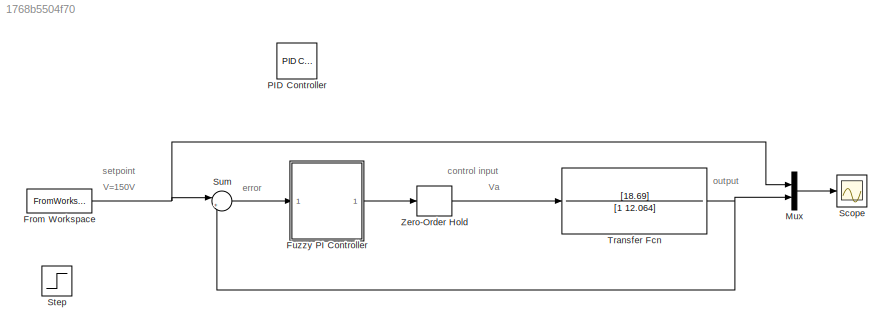
MODEL slx_1768b5504f70
KIND model
CONFIG AbsTol = auto
CONFIG EnableMultiTasking = off
CONFIG FixedStep = auto
CONFIG MaxStep = auto
CONFIG MinStep = auto
CONFIG RelTol = 1e-3
CONFIG SampleTimeConstraint = Unconstrained
CONFIG Solver = VariableStepAuto
CONFIG SolverName = VariableStepAuto
CONFIG StartTime = 0.0
CONFIG StopTime = 30
BLOCK [FromWorkspace] From Workspace
  SampleTime = 0.01
  VariableName = case_2
  ZeroCross = on
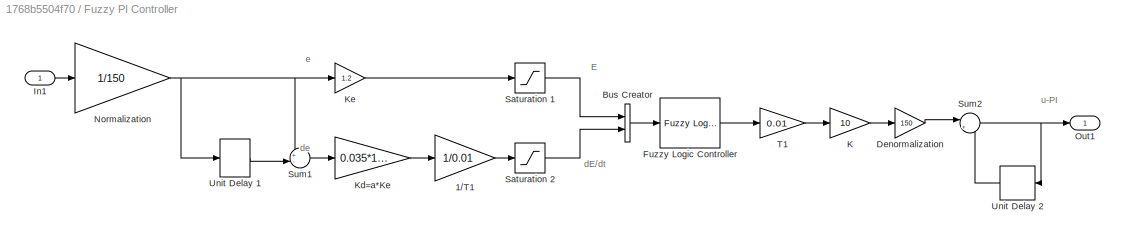
BLOCK [SubSystem] Fuzzy PI Controller
  Ports = [1, 1]
  RequestExecContextInheritance = off
BLOCK [Gain] Fuzzy PI Controller/1//T1
  Gain = 1/0.01
  OutDataTypeStr = Inherit: Inherit via internal rule
  ParamDataTypeStr = Inherit: Inherit via internal rule
  SaturateOnIntegerOverflow = off
BLOCK [BusCreator] Fuzzy PI Controller/Bus Creator
  DisplayOption = bar
  InheritFromInputs = on
  Inputs = 2
  Ports = [2, 1]
BLOCK [Gain] Fuzzy PI Controller/Denormalization 
  Gain = 150
  OutDataTypeStr = Inherit: Inherit via internal rule
  ParamDataTypeStr = Inherit: Inherit via internal rule
  SaturateOnIntegerOverflow = off
BLOCK [Reference] Fuzzy PI Controller/Fuzzy Logic Controller   REF=fuzblock/Fuzzy Logic   (lib defined in mdl_858b3b3e7478)
Controller 
with Ruleviewer
  Ports = [1, 1]
  SourceBlock = fuzblock/Fuzzy Logic \nController \nwith Ruleviewer
  SourceProductBaseCode = FL
  SourceProductName = Fuzzy Logic Toolbox
  SourceType = Fuzzy Inference System
BLOCK [Inport] Fuzzy PI Controller/In1
  IconDisplay = Port number
BLOCK [Gain] Fuzzy PI Controller/K
  Gain = 10
  OutDataTypeStr = Inherit: Inherit via internal rule
  ParamDataTypeStr = Inherit: Inherit via internal rule
  SaturateOnIntegerOverflow = off
BLOCK [Gain] Fuzzy PI Controller/Kd=a*Ke
  Gain = 0.035*1.2
  OutDataTypeStr = Inherit: Inherit via internal rule
  ParamDataTypeStr = Inherit: Inherit via internal rule
  SaturateOnIntegerOverflow = off
BLOCK [Gain] Fuzzy PI Controller/Ke
  Gain = 1.2
  OutDataTypeStr = Inherit: Inherit via internal rule
  ParamDataTypeStr = Inherit: Inherit via internal rule
  SaturateOnIntegerOverflow = off
BLOCK [Gain] Fuzzy PI Controller/Normalization
  Gain = 1/150
  OutDataTypeStr = Inherit: Inherit via internal rule
  ParamDataTypeStr = Inherit: Inherit via internal rule
  SaturateOnIntegerOverflow = off
BLOCK [Outport] Fuzzy PI Controller/Out1
  IconDisplay = Port number
BLOCK [Saturate] Fuzzy PI Controller/Saturation 1 
  InputPortMap = u0
  LowerLimit = -1
  Ports = [1, 1]
  UpperLimit = 1
BLOCK [Saturate] Fuzzy PI Controller/Saturation 2 
  InputPortMap = u0
  LowerLimit = -1
  Ports = [1, 1]
  UpperLimit = 1
BLOCK [Sum] Fuzzy PI Controller/Sum1
  IconShape = round
  InputSameDT = off
  Inputs = +-|
  OutDataTypeStr = Inherit: Inherit via internal rule
  Ports = [2, 1]
  SaturateOnIntegerOverflow = off
BLOCK [Sum] Fuzzy PI Controller/Sum2
  IconShape = round
  InputSameDT = off
  Inputs = |++
  OutDataTypeStr = Inherit: Inherit via internal rule
  Ports = [2, 1]
  SaturateOnIntegerOverflow = off
BLOCK [Gain] Fuzzy PI Controller/T1
  Gain = 0.01
  OutDataTypeStr = Inherit: Inherit via internal rule
  ParamDataTypeStr = Inherit: Inherit via internal rule
  SaturateOnIntegerOverflow = off
BLOCK [Delay] Fuzzy PI Controller/Unit Delay 1
  DelayLength = 1
  InputPortMap = u0
  Ports = [1, 1]
  SampleTime = 0.01
BLOCK [Delay] Fuzzy PI Controller/Unit Delay 2
  DelayLength = 1
  InputPortMap = u0
  Ports = [1, 1]
  SampleTime = 0.01
BLOCK [Mux] Mux
  DisplayOption = bar
  Inputs = 2
  Ports = [2, 1]
BLOCK [Reference] PID Controller  REF=simulink/Continuous/PID Controller
  Commented = on
  Ports = [1, 1]
  SourceBlock = simulink/Continuous/PID Controller
  SourceProductBaseCode = SL
  SourceProductName = Simulink
  SourceType = PID 1dof
BLOCK [Scope] Scope
  Floating = off
  NumInputPorts = 1
  Ports = [1]
  ScopeSpecificationString = Simulink.scopes.TimeScopeBlockCfg('CurrentConfiguration', extmgr.ConfigurationSet(extmgr.Configuration('Core','General UI',true),extmgr.Configuration('Core','Source UI',true),extmgr.Configuration('Sources','WiredSimulink',true),extmgr.Configuration('Visuals','Time Domain',true,'SerializedDisplays',{struct('MinYLimReal','-18.76765','MaxYLimReal','168.90888','YLabelReal','','MinYLimMag','0.00000','M...<+1698ch>
BLOCK [Step] Step
  After = 150
  Commented = on
  SampleTime = 0.01
  Time = 0
BLOCK [Sum] Sum
  IconShape = round
  InputSameDT = off
  Inputs = |+-
  OutDataTypeStr = Inherit: Inherit via internal rule
  Ports = [2, 1]
  SaturateOnIntegerOverflow = off
BLOCK [TransferFcn] Transfer Fcn
  Denominator = [1 12.064]
  Numerator = [18.69]
BLOCK [ZeroOrderHold] Zero-Order Hold
  SampleTime = 0.01
ANNOTATION (root): V=150V
ANNOTATION (root): Va
ANNOTATION (root): control input
ANNOTATION (root): error
ANNOTATION (root): output
ANNOTATION (root): setpoint
ANNOTATION Fuzzy PI Controller: E
ANNOTATION Fuzzy PI Controller: dE/dt
ANNOTATION Fuzzy PI Controller: de
ANNOTATION Fuzzy PI Controller: e
ANNOTATION Fuzzy PI Controller: u-PI
NET From Workspace:1 -> Mux:1, Sum:1
LINE Fuzzy PI Controller/1//T1:1 -> Fuzzy PI Controller/Saturation 2 :1
LINE Fuzzy PI Controller/Bus Creator:1 -> Fuzzy PI Controller/Fuzzy Logic Controller :1
LINE Fuzzy PI Controller/Denormalization :1 -> Fuzzy PI Controller/Sum2:1
LINE Fuzzy PI Controller/Fuzzy Logic Controller :1 -> Fuzzy PI Controller/T1:1
LINE Fuzzy PI Controller/In1:1 -> Fuzzy PI Controller/Normalization:1
LINE Fuzzy PI Controller/K:1 -> Fuzzy PI Controller/Denormalization :1
LINE Fuzzy PI Controller/Kd=a*Ke:1 -> Fuzzy PI Controller/1//T1:1
LINE Fuzzy PI Controller/Ke:1 -> Fuzzy PI Controller/Saturation 1 :1
NET Fuzzy PI Controller/Normalization:1 -> Fuzzy PI Controller/Ke:1, Fuzzy PI Controller/Sum1:1, Fuzzy PI Controller/Unit Delay 1:1
LINE Fuzzy PI Controller/Saturation 1 :1 -> Fuzzy PI Controller/Bus Creator:1
LINE Fuzzy PI Controller/Saturation 2 :1 -> Fuzzy PI Controller/Bus Creator:2
LINE Fuzzy PI Controller/Sum1:1 -> Fuzzy PI Controller/Kd=a*Ke:1
NET Fuzzy PI Controller/Sum2:1 -> Fuzzy PI Controller/Out1:1, Fuzzy PI Controller/Unit Delay 2:1
LINE Fuzzy PI Controller/T1:1 -> Fuzzy PI Controller/K:1
LINE Fuzzy PI Controller/Unit Delay 1:1 -> Fuzzy PI Controller/Sum1:2
LINE Fuzzy PI Controller/Unit Delay 2:1 -> Fuzzy PI Controller/Sum2:2
LINE Fuzzy PI Controller:1 -> Zero-Order Hold:1
LINE Mux:1 -> Scope:1
LINE Sum:1 -> Fuzzy PI Controller:1
NET Transfer Fcn:1 -> Mux:2, Sum:2
LINE Zero-Order Hold:1 -> Transfer Fcn:1
note: NET lines group one-source signal fan-out (src -> all destinations, sorted); 1:1 wires keep LINE
